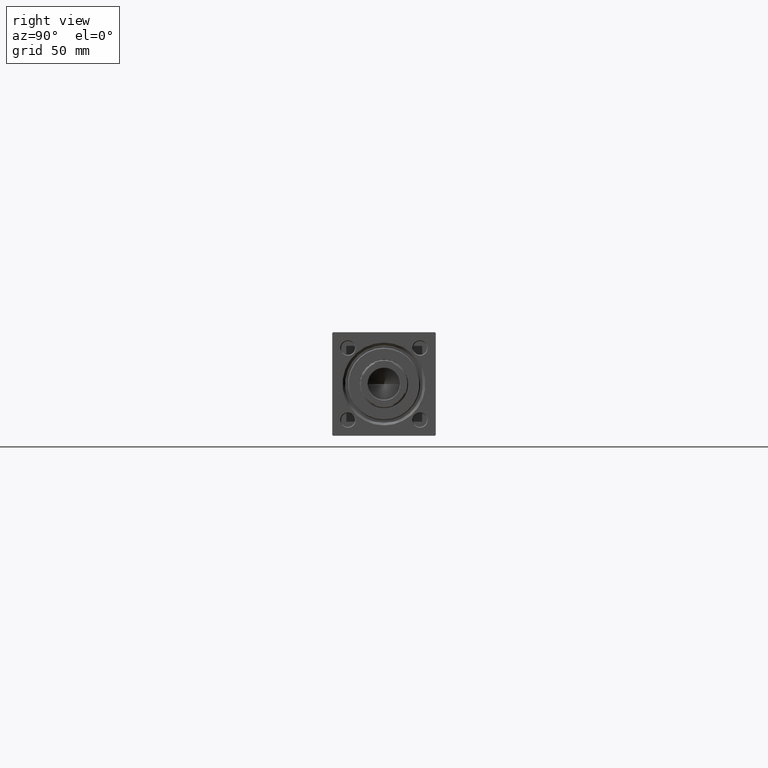
[diagram: clean part render]
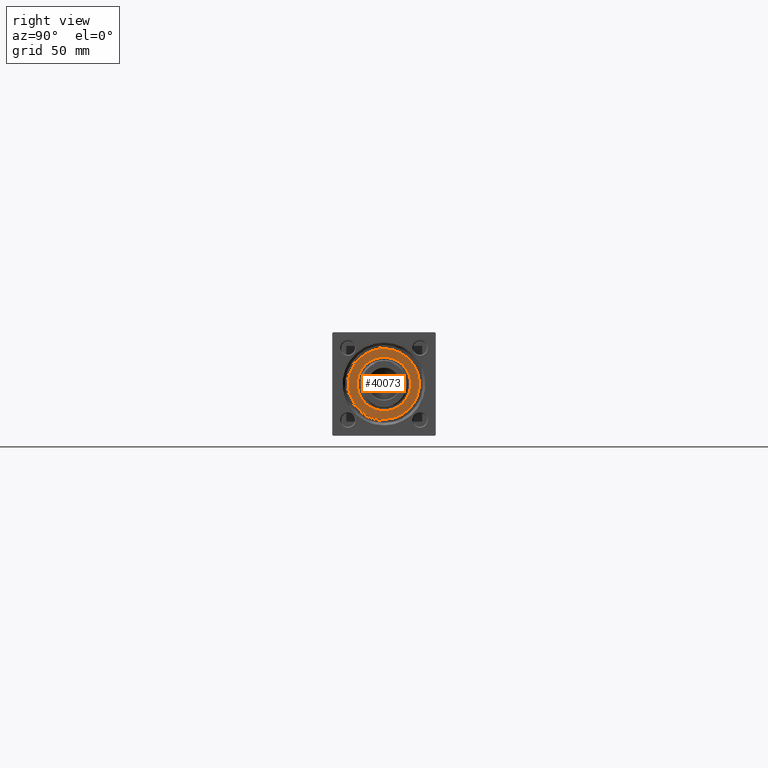
[diagram: same view with one face highlighted and labeled with its STEP entity id]
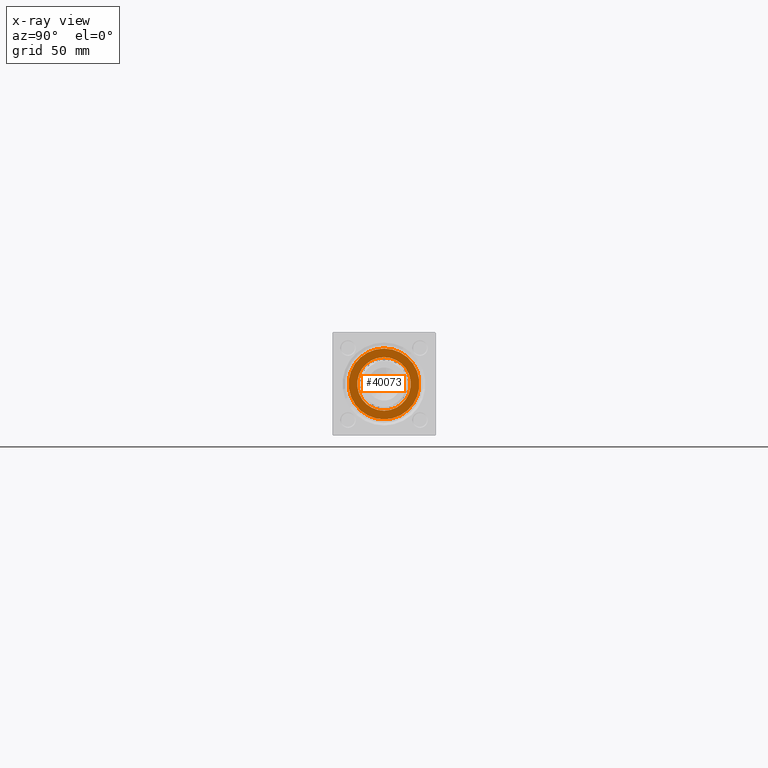
[diagram: x-ray of the same camera — body ghosted, the highlighted face saturated]
A machine part, right view. The second image highlights one B-rep face of the part: STEP entity #40073.
The next image is the same camera in x-ray: the body ghosted, the highlighted face saturated — about 0% of this face is hidden behind the body in this view.
In plain terms, the highlighted planar face has unit normal (1, 0, 0).
Its self-contained STEP definition (entity closure, byte-faithful):
#645 = ORIENTED_EDGE ( 'NONE', *, *, #16463, .T. ) ;
#2450 = ORIENTED_EDGE ( 'NONE', *, *, #31751, .F. ) ;
#4481 = EDGE_CURVE ( 'NONE', #13560, #23751, #36281, .T. ) ;
#5137 = VERTEX_POINT ( 'NONE', #15922 ) ;
#6871 = AXIS2_PLACEMENT_3D ( 'NONE', #16088, #40182, #19632 ) ;
#8288 = CARTESIAN_POINT ( 'NONE',  ( 20.49999999999999645, 2.541142108230757480E-15, 40.70000000000000284 ) ) ;
#8838 = DIRECTION ( 'NONE',  ( 1.000000000000000000, 0.000000000000000000, 0.000000000000000000 ) ) ;
#8936 = CARTESIAN_POINT ( 'NONE',  ( 0.000000000000000000, 0.000000000000000000, 40.70000000000000284 ) ) ;
#9600 = FACE_OUTER_BOUND ( 'NONE', #32131, .T. ) ;
#9845 = PLANE ( 'NONE',  #27467 ) ;
#10093 = DIRECTION ( 'NONE',  ( 1.000000000000000000, 0.000000000000000000, -0.000000000000000000 ) ) ;
#11136 = ORIENTED_EDGE ( 'NONE', *, *, #4481, .T. ) ;
#12566 = EDGE_CURVE ( 'NONE', #5137, #20809, #42223, .T. ) ;
#13560 = VERTEX_POINT ( 'NONE', #8288 ) ;
#14427 = CARTESIAN_POINT ( 'NONE',  ( 0.000000000000000000, 0.000000000000000000, 40.70000000000000284 ) ) ;
#15695 = DIRECTION ( 'NONE',  ( 0.000000000000000000, 0.000000000000000000, 1.000000000000000000 ) ) ;
#15922 = CARTESIAN_POINT ( 'NONE',  ( 15.50000000000000000, 0.000000000000000000, 40.70000000000000284 ) ) ;
#16034 = AXIS2_PLACEMENT_3D ( 'NONE', #14427, #29152, #41575 ) ;
#16088 = CARTESIAN_POINT ( 'NONE',  ( 0.000000000000000000, 0.000000000000000000, 40.70000000000000284 ) ) ;
#16463 = EDGE_CURVE ( 'NONE', #23751, #13560, #41489, .T. ) ;
#19492 = AXIS2_PLACEMENT_3D ( 'NONE', #20239, #15695, #8838 ) ;
#19602 = AXIS2_PLACEMENT_3D ( 'NONE', #8936, #24415, #31026 ) ;
#19632 = DIRECTION ( 'NONE',  ( 1.000000000000000000, 0.000000000000000000, 0.000000000000000000 ) ) ;
#20239 = CARTESIAN_POINT ( 'NONE',  ( 0.000000000000000000, 0.000000000000000000, 40.70000000000000284 ) ) ;
#20809 = VERTEX_POINT ( 'NONE', #49583 ) ;
#23751 = VERTEX_POINT ( 'NONE', #25372 ) ;
#24415 = DIRECTION ( 'NONE',  ( 0.000000000000000000, 0.000000000000000000, 1.000000000000000000 ) ) ;
#25372 = CARTESIAN_POINT ( 'NONE',  ( -20.49999999999999645, 0.000000000000000000, 40.70000000000000284 ) ) ;
#26973 = EDGE_LOOP ( 'NONE', ( #46995, #2450 ) ) ;
#27467 = AXIS2_PLACEMENT_3D ( 'NONE', #33195, #37514, #10093 ) ;
#29152 = DIRECTION ( 'NONE',  ( 0.000000000000000000, 0.000000000000000000, 1.000000000000000000 ) ) ;
#31026 = DIRECTION ( 'NONE',  ( 1.000000000000000000, 0.000000000000000000, 0.000000000000000000 ) ) ;
#31751 = EDGE_CURVE ( 'NONE', #20809, #5137, #32031, .T. ) ;
#32031 = CIRCLE ( 'NONE', #6871, 15.50000000000000000 ) ;
#32131 = EDGE_LOOP ( 'NONE', ( #645, #11136 ) ) ;
#33195 = CARTESIAN_POINT ( 'NONE',  ( 0.000000000000000000, 0.000000000000000000, 40.70000000000000284 ) ) ;
#36281 = CIRCLE ( 'NONE', #16034, 20.49999999999999645 ) ;
#37514 = DIRECTION ( 'NONE',  ( 0.000000000000000000, 0.000000000000000000, 1.000000000000000000 ) ) ;
#40073 = ADVANCED_FACE ( 'NONE', ( #44863, #9600 ), #9845, .T. ) ;
#40182 = DIRECTION ( 'NONE',  ( 0.000000000000000000, 0.000000000000000000, 1.000000000000000000 ) ) ;
#41489 = CIRCLE ( 'NONE', #19602, 20.49999999999999645 ) ;
#41575 = DIRECTION ( 'NONE',  ( 1.000000000000000000, 0.000000000000000000, 0.000000000000000000 ) ) ;
#42223 = CIRCLE ( 'NONE', #19492, 15.50000000000000000 ) ;
#44863 = FACE_BOUND ( 'NONE', #26973, .T. ) ;
#46995 = ORIENTED_EDGE ( 'NONE', *, *, #12566, .F. ) ;
#49583 = CARTESIAN_POINT ( 'NONE',  ( -15.50000000000000000, 1.898202538678397557E-15, 40.70000000000000284 ) ) ;